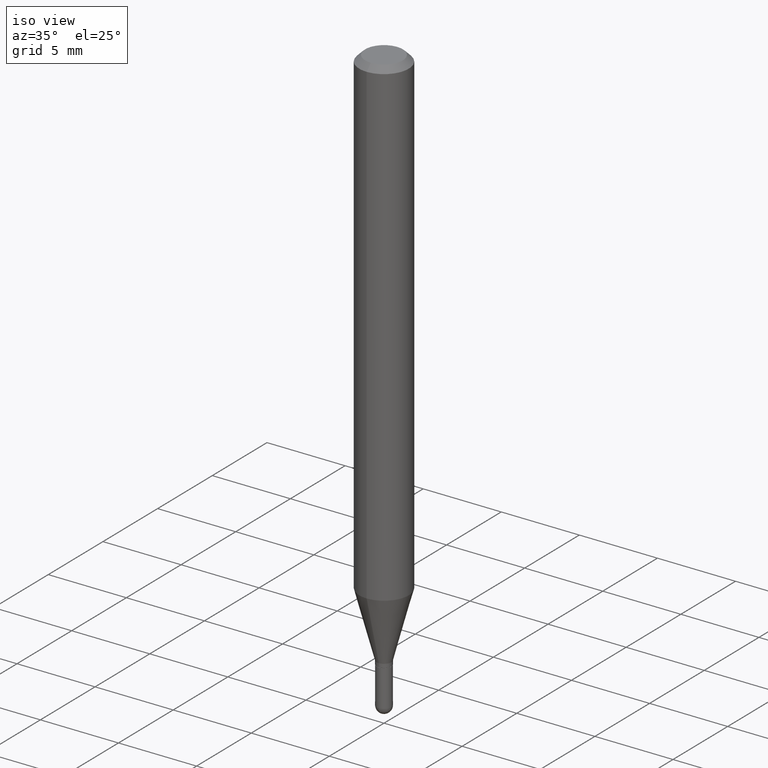
[diagram: clean part render]
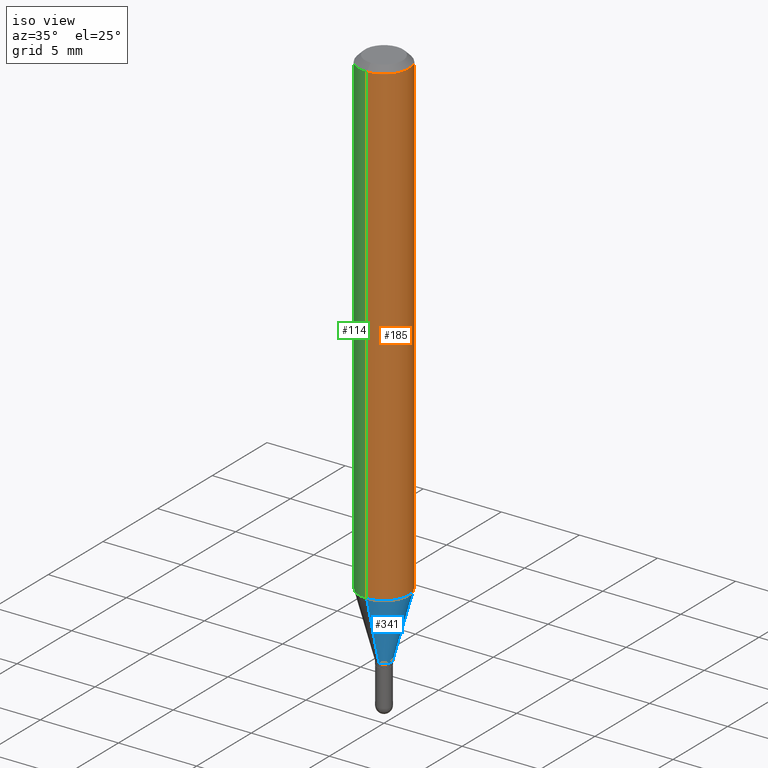
[diagram: same view with three faces highlighted in distinct colors, each labeled with its STEP entity id]
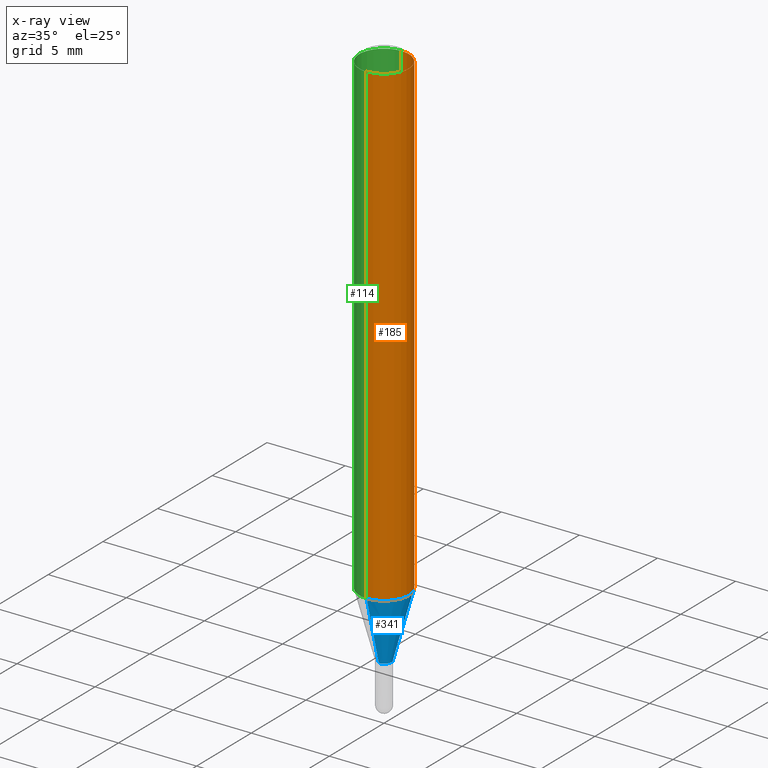
[diagram: x-ray of the same camera — body ghosted, the three highlighted faces saturated]
A machine part, iso view with three faces highlighted in distinct colors.
The next image is the same camera in x-ray (body ghosted, the three faces saturated) — at least one of them is partly hidden behind the body in this view.
Their STEP definitions:

[orange] entity #185 — the highlighted cylindrical surface (edge-blend (fillet) strip) has radius 1.5875 mm, axis along (-0, 0, 1).
#14 = DIRECTION ( 'NONE',  ( -2.445484927549883578E-29, 3.491458252131256099E-15, 1.000000000000000000 ) ) ;
#18 = DIRECTION ( 'NONE',  ( -2.445484927549883858E-29, 3.491458252131256494E-15, 1.000000000000000000 ) ) ;
#25 = CARTESIAN_POINT ( 'NONE',  ( 2.970750059145847574E-29, -4.241387747752786622E-15, -1.214789764466969624 ) ) ;
#35 = ORIENTED_EDGE ( 'NONE', *, *, #111, .F. ) ;
#46 = CARTESIAN_POINT ( 'NONE',  ( 4.440892098500924943E-16, 0.06249999999999993755, -0.01499999999999997863 ) ) ;
#72 = VERTEX_POINT ( 'NONE', #122 ) ;
#98 = CARTESIAN_POINT ( 'NONE',  ( -4.364351673553916201E-16, -0.06250000000000000000, 2.182161407582035308E-16 ) ) ;
#111 = EDGE_CURVE ( 'NONE', #334, #72, #415, .T. ) ;
#121 = ORIENTED_EDGE ( 'NONE', *, *, #123, .T. ) ;
#122 = CARTESIAN_POINT ( 'NONE',  ( -4.364351673553912750E-16, -0.06250000000000005551, -0.01499999999999954321 ) ) ;
#123 = EDGE_CURVE ( 'NONE', #264, #459, #231, .T. ) ;
#139 = DIRECTION ( 'NONE',  ( -6.982962677686265922E-15, -1.000000000000000000, 4.370956789862821150E-15 ) ) ;
#144 = DIRECTION ( 'NONE',  ( -2.445484927549883858E-29, 3.491458252131256494E-15, 1.000000000000000000 ) ) ;
#145 = FACE_OUTER_BOUND ( 'NONE', #296, .T. ) ;
#152 = CYLINDRICAL_SURFACE ( 'NONE', #417, 0.06250000000000000000 ) ;
#158 = VECTOR ( 'NONE', #300, 39.37007874015748143 ) ;
#184 = ORIENTED_EDGE ( 'NONE', *, *, #215, .F. ) ;
#185 = ADVANCED_FACE ( 'NONE', ( #145 ), #152, .T. ) ;
#215 = EDGE_CURVE ( 'NONE', #72, #459, #402, .T. ) ;
#231 = LINE ( 'NONE', #368, #488 ) ;
#264 = VERTEX_POINT ( 'NONE', #286 ) ;
#272 = AXIS2_PLACEMENT_3D ( 'NONE', #419, #18, #491 ) ;
#275 = CIRCLE ( 'NONE', #372, 0.06250000000000000000 ) ;
#286 = CARTESIAN_POINT ( 'NONE',  ( 4.440892098500921985E-16, 0.06249999999999573952, -1.214789764466969846 ) ) ;
#296 = EDGE_LOOP ( 'NONE', ( #435, #121, #184, #35 ) ) ;
#297 = CARTESIAN_POINT ( 'NONE',  ( 0.000000000000000000, 0.000000000000000000, 0.000000000000000000 ) ) ;
#300 = DIRECTION ( 'NONE',  ( -2.445484927549883578E-29, 3.491458252131256099E-15, 1.000000000000000000 ) ) ;
#305 = DIRECTION ( 'NONE',  ( -6.982962677686265922E-15, -1.000000000000000000, 3.491458252131256494E-15 ) ) ;
#334 = VERTEX_POINT ( 'NONE', #411 ) ;
#368 = CARTESIAN_POINT ( 'NONE',  ( 4.440892098500625669E-16, 0.06250000000000000000, -2.182161407582035308E-16 ) ) ;
#372 = AXIS2_PLACEMENT_3D ( 'NONE', #25, #144, #139 ) ;
#402 = CIRCLE ( 'NONE', #272, 0.06250000000000000000 ) ;
#411 = CARTESIAN_POINT ( 'NONE',  ( -4.364351673553620871E-16, -0.06250000000000427436, -1.214789764466969402 ) ) ;
#415 = LINE ( 'NONE', #98, #158 ) ;
#417 = AXIS2_PLACEMENT_3D ( 'NONE', #297, #481, #305 ) ;
#419 = CARTESIAN_POINT ( 'NONE',  ( 3.668227391324766810E-31, -5.237187378196801762E-17, -0.01499999999999976179 ) ) ;
#435 = ORIENTED_EDGE ( 'NONE', *, *, #446, .T. ) ;
#446 = EDGE_CURVE ( 'NONE', #334, #264, #275, .T. ) ;
#459 = VERTEX_POINT ( 'NONE', #46 ) ;
#481 = DIRECTION ( 'NONE',  ( -2.445484927549883858E-29, 3.491458252131256494E-15, 1.000000000000000000 ) ) ;
#488 = VECTOR ( 'NONE', #14, 39.37007874015748143 ) ;
#491 = DIRECTION ( 'NONE',  ( -6.982962677686265922E-15, -1.000000000000000000, 3.483106191921935554E-15 ) ) ;

[blue] entity #341 — the highlighted conical surface has half-angle 15 deg.
#21 = FACE_OUTER_BOUND ( 'NONE', #462, .T. ) ;
#25 = CARTESIAN_POINT ( 'NONE',  ( 2.970750059145847574E-29, -4.241387747752786622E-15, -1.214789764466969624 ) ) ;
#55 = VECTOR ( 'NONE', #320, 39.37007874015748143 ) ;
#59 = DIRECTION ( 'NONE',  ( 1.839019923739601104E-15, 0.2588190451025250693, 0.9659258262890670910 ) ) ;
#64 = CARTESIAN_POINT ( 'NONE',  ( 2.877698079828721388E-16, 0.01849999999999510716, -1.379000000000000004 ) ) ;
#93 = ORIENTED_EDGE ( 'NONE', *, *, #271, .T. ) ;
#94 = CARTESIAN_POINT ( 'NONE',  ( 1.314504061156517093E-16, 0.01849999999999510716, -1.379000000000000004 ) ) ;
#106 = DIRECTION ( 'NONE',  ( -2.445484927549883858E-29, 3.491458252131256494E-15, 1.000000000000000000 ) ) ;
#107 = DIRECTION ( 'NONE',  ( -6.982962677686265922E-15, -1.000000000000000000, 0.000000000000000000 ) ) ;
#113 = LINE ( 'NONE', #94, #166 ) ;
#139 = DIRECTION ( 'NONE',  ( -6.982962677686265922E-15, -1.000000000000000000, 4.370956789862821150E-15 ) ) ;
#144 = DIRECTION ( 'NONE',  ( -2.445484927549883858E-29, 3.491458252131256494E-15, 1.000000000000000000 ) ) ;
#166 = VECTOR ( 'NONE', #59, 39.37007874015748143 ) ;
#192 = ORIENTED_EDGE ( 'NONE', *, *, #446, .F. ) ;
#198 = AXIS2_PLACEMENT_3D ( 'NONE', #351, #497, #202 ) ;
#202 = DIRECTION ( 'NONE',  ( -6.982962677686265922E-15, -1.000000000000000000, 0.000000000000000000 ) ) ;
#227 = ORIENTED_EDGE ( 'NONE', *, *, #506, .F. ) ;
#241 = CONICAL_SURFACE ( 'NONE', #198, 0.01849999999999992276, 0.2617993877991502960 ) ;
#246 = LINE ( 'NONE', #277, #55 ) ;
#264 = VERTEX_POINT ( 'NONE', #286 ) ;
#271 = EDGE_CURVE ( 'NONE', #338, #264, #113, .T. ) ;
#275 = CIRCLE ( 'NONE', #372, 0.06250000000000000000 ) ;
#277 = CARTESIAN_POINT ( 'NONE',  ( -1.291848095371616572E-16, -0.01850000000000473835, -1.379000000000000004 ) ) ;
#286 = CARTESIAN_POINT ( 'NONE',  ( 4.440892098500921985E-16, 0.06249999999999573952, -1.214789764466969846 ) ) ;
#320 = DIRECTION ( 'NONE',  ( -1.807323732225330928E-15, -0.2588190451025182970, 0.9659258262890689783 ) ) ;
#326 = CARTESIAN_POINT ( 'NONE',  ( -1.291848095371616572E-16, -0.01850000000000473835, -1.379000000000000004 ) ) ;
#328 = ORIENTED_EDGE ( 'NONE', *, *, #493, .T. ) ;
#334 = VERTEX_POINT ( 'NONE', #411 ) ;
#338 = VERTEX_POINT ( 'NONE', #64 ) ;
#341 = ADVANCED_FACE ( 'NONE', ( #21 ), #241, .T. ) ;
#351 = CARTESIAN_POINT ( 'NONE',  ( 3.372323715091289390E-29, -4.814720929689002730E-15, -1.379000000000000004 ) ) ;
#372 = AXIS2_PLACEMENT_3D ( 'NONE', #25, #144, #139 ) ;
#388 = CIRCLE ( 'NONE', #470, 0.01849999999999992276 ) ;
#411 = CARTESIAN_POINT ( 'NONE',  ( -4.364351673553620871E-16, -0.06250000000000427436, -1.214789764466969402 ) ) ;
#429 = VERTEX_POINT ( 'NONE', #326 ) ;
#446 = EDGE_CURVE ( 'NONE', #334, #264, #275, .T. ) ;
#451 = CARTESIAN_POINT ( 'NONE',  ( 3.372323715091289390E-29, -4.814720929689002730E-15, -1.379000000000000004 ) ) ;
#462 = EDGE_LOOP ( 'NONE', ( #328, #93, #192, #227 ) ) ;
#470 = AXIS2_PLACEMENT_3D ( 'NONE', #451, #106, #107 ) ;
#493 = EDGE_CURVE ( 'NONE', #429, #338, #388, .T. ) ;
#497 = DIRECTION ( 'NONE',  ( -2.445484927549883858E-29, 3.491458252131256494E-15, 1.000000000000000000 ) ) ;
#506 = EDGE_CURVE ( 'NONE', #429, #334, #246, .T. ) ;

[green] entity #114 — the highlighted cylindrical surface (edge-blend (fillet) strip) has radius 1.5875 mm, axis along (-0, 0, 1).
#14 = DIRECTION ( 'NONE',  ( -2.445484927549883578E-29, 3.491458252131256099E-15, 1.000000000000000000 ) ) ;
#46 = CARTESIAN_POINT ( 'NONE',  ( 4.440892098500924943E-16, 0.06249999999999993755, -0.01499999999999997863 ) ) ;
#52 = DIRECTION ( 'NONE',  ( -6.982962677686265922E-15, -1.000000000000000000, 3.491458252131256494E-15 ) ) ;
#72 = VERTEX_POINT ( 'NONE', #122 ) ;
#98 = CARTESIAN_POINT ( 'NONE',  ( -4.364351673553916201E-16, -0.06250000000000000000, 2.182161407582035308E-16 ) ) ;
#99 = DIRECTION ( 'NONE',  ( -2.445484927549883858E-29, 3.491458252131256494E-15, 1.000000000000000000 ) ) ;
#109 = AXIS2_PLACEMENT_3D ( 'NONE', #148, #99, #265 ) ;
#111 = EDGE_CURVE ( 'NONE', #334, #72, #415, .T. ) ;
#114 = ADVANCED_FACE ( 'NONE', ( #193 ), #339, .T. ) ;
#122 = CARTESIAN_POINT ( 'NONE',  ( -4.364351673553912750E-16, -0.06250000000000005551, -0.01499999999999954321 ) ) ;
#123 = EDGE_CURVE ( 'NONE', #264, #459, #231, .T. ) ;
#132 = CARTESIAN_POINT ( 'NONE',  ( 2.970750059145847574E-29, -4.241387747752786622E-15, -1.214789764466969624 ) ) ;
#133 = ORIENTED_EDGE ( 'NONE', *, *, #317, .F. ) ;
#143 = ORIENTED_EDGE ( 'NONE', *, *, #238, .T. ) ;
#148 = CARTESIAN_POINT ( 'NONE',  ( 3.668227391324766810E-31, -5.237187378196801762E-17, -0.01499999999999976179 ) ) ;
#149 = DIRECTION ( 'NONE',  ( -2.445484927549883858E-29, 3.491458252131256494E-15, 1.000000000000000000 ) ) ;
#158 = VECTOR ( 'NONE', #300, 39.37007874015748143 ) ;
#169 = DIRECTION ( 'NONE',  ( -6.982962677686265922E-15, -1.000000000000000000, 4.370956789862821150E-15 ) ) ;
#177 = ORIENTED_EDGE ( 'NONE', *, *, #111, .T. ) ;
#193 = FACE_OUTER_BOUND ( 'NONE', #510, .T. ) ;
#231 = LINE ( 'NONE', #368, #488 ) ;
#238 = EDGE_CURVE ( 'NONE', #264, #334, #412, .T. ) ;
#264 = VERTEX_POINT ( 'NONE', #286 ) ;
#265 = DIRECTION ( 'NONE',  ( -6.982962677686265922E-15, -1.000000000000000000, 3.483106191921935554E-15 ) ) ;
#286 = CARTESIAN_POINT ( 'NONE',  ( 4.440892098500921985E-16, 0.06249999999999573952, -1.214789764466969846 ) ) ;
#300 = DIRECTION ( 'NONE',  ( -2.445484927549883578E-29, 3.491458252131256099E-15, 1.000000000000000000 ) ) ;
#303 = ORIENTED_EDGE ( 'NONE', *, *, #123, .F. ) ;
#304 = CARTESIAN_POINT ( 'NONE',  ( 0.000000000000000000, 0.000000000000000000, 0.000000000000000000 ) ) ;
#317 = EDGE_CURVE ( 'NONE', #459, #72, #324, .T. ) ;
#324 = CIRCLE ( 'NONE', #109, 0.06250000000000000000 ) ;
#334 = VERTEX_POINT ( 'NONE', #411 ) ;
#339 = CYLINDRICAL_SURFACE ( 'NONE', #486, 0.06250000000000000000 ) ;
#368 = CARTESIAN_POINT ( 'NONE',  ( 4.440892098500625669E-16, 0.06250000000000000000, -2.182161407582035308E-16 ) ) ;
#411 = CARTESIAN_POINT ( 'NONE',  ( -4.364351673553620871E-16, -0.06250000000000427436, -1.214789764466969402 ) ) ;
#412 = CIRCLE ( 'NONE', #453, 0.06250000000000000000 ) ;
#415 = LINE ( 'NONE', #98, #158 ) ;
#453 = AXIS2_PLACEMENT_3D ( 'NONE', #132, #473, #169 ) ;
#459 = VERTEX_POINT ( 'NONE', #46 ) ;
#473 = DIRECTION ( 'NONE',  ( -2.445484927549883858E-29, 3.491458252131256494E-15, 1.000000000000000000 ) ) ;
#486 = AXIS2_PLACEMENT_3D ( 'NONE', #304, #149, #52 ) ;
#488 = VECTOR ( 'NONE', #14, 39.37007874015748143 ) ;
#510 = EDGE_LOOP ( 'NONE', ( #303, #143, #177, #133 ) ) ;